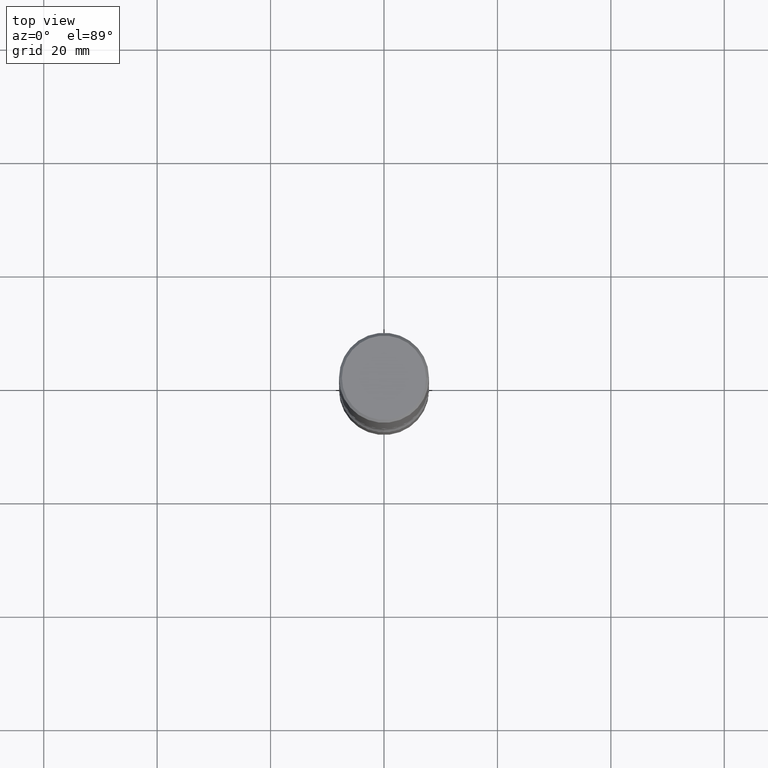
[diagram: clean part render]
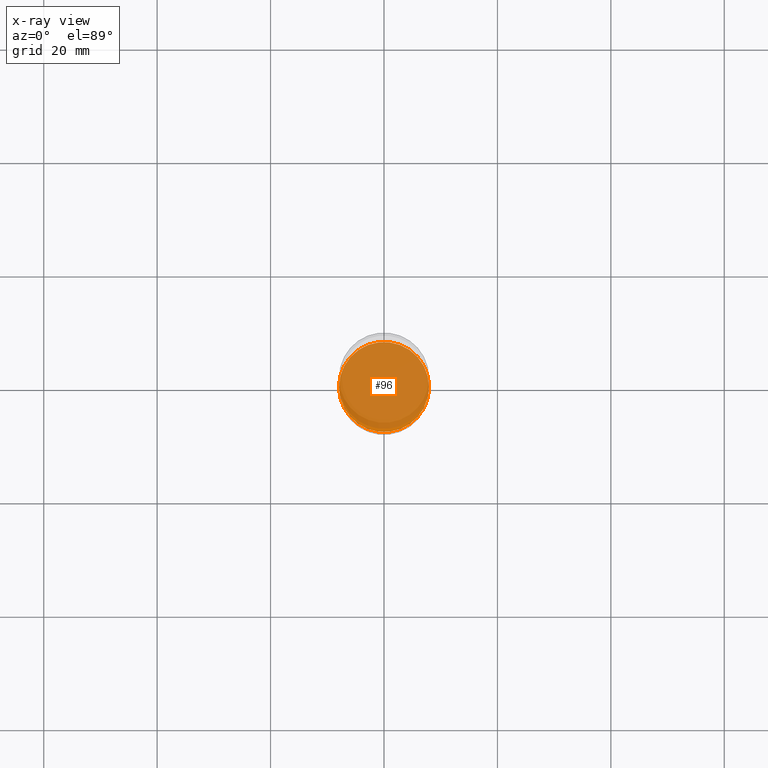
[diagram: x-ray — body ghosted, one internal face saturated and labeled with its STEP entity id]
A machine part, top view, then the same camera in x-ray: the body is ghosted and one INTERNAL B-rep face — a face not visible from any outside direction — is saturated and labeled: STEP entity #96.
In plain terms, the highlighted planar face has unit normal (0, -0, -1).
Its self-contained STEP definition (entity closure, byte-faithful):
#11 = AXIS2_PLACEMENT_3D ( 'NONE', #115, #515, #458 ) ;
#34 = AXIS2_PLACEMENT_3D ( 'NONE', #400, #153, #271 ) ;
#41 = DIRECTION ( 'NONE',  ( -2.445468806185136597E-29, 3.491481338843145583E-15, 1.000000000000000000 ) ) ;
#96 = ADVANCED_FACE ( 'NONE', ( #332 ), #460, .F. ) ;
#115 = CARTESIAN_POINT ( 'NONE',  ( 9.170508023194261117E-29, -1.309305502066179584E-14, -3.749999999999999556 ) ) ;
#153 = DIRECTION ( 'NONE',  ( -2.445468806185136597E-29, 3.491481338843145583E-15, 1.000000000000000000 ) ) ;
#185 = ORIENTED_EDGE ( 'NONE', *, *, #188, .T. ) ;
#187 = EDGE_LOOP ( 'NONE', ( #185, #230 ) ) ;
#188 = EDGE_CURVE ( 'NONE', #399, #218, #452, .T. ) ;
#218 = VERTEX_POINT ( 'NONE', #417 ) ;
#221 = CARTESIAN_POINT ( 'NONE',  ( 0.3125000000000001665, -1.527523085743875418E-14, -3.749999999999999556 ) ) ;
#230 = ORIENTED_EDGE ( 'NONE', *, *, #498, .T. ) ;
#249 = CARTESIAN_POINT ( 'NONE',  ( 9.170508023194261117E-29, -1.309305502066179584E-14, -3.749999999999999556 ) ) ;
#271 = DIRECTION ( 'NONE',  ( 1.000000000000000000, -6.982962677686265133E-15, 0.000000000000000000 ) ) ;
#332 = FACE_OUTER_BOUND ( 'NONE', #187, .T. ) ;
#399 = VERTEX_POINT ( 'NONE', #221 ) ;
#400 = CARTESIAN_POINT ( 'NONE',  ( 9.170508023194261117E-29, -1.309305502066179584E-14, -3.749999999999999556 ) ) ;
#412 = CIRCLE ( 'NONE', #34, 0.3125000000000001665 ) ;
#417 = CARTESIAN_POINT ( 'NONE',  ( -0.3125000000000001665, -1.284529592785785752E-14, -3.749999999999999556 ) ) ;
#420 = DIRECTION ( 'NONE',  ( 1.000000000000000000, -6.982962677686265133E-15, 0.000000000000000000 ) ) ;
#452 = CIRCLE ( 'NONE', #537, 0.3125000000000001665 ) ;
#458 = DIRECTION ( 'NONE',  ( -1.000000000000000000, 6.982962677686265922E-15, -4.876176775795935793E-29 ) ) ;
#460 = PLANE ( 'NONE',  #11 ) ;
#498 = EDGE_CURVE ( 'NONE', #218, #399, #412, .T. ) ;
#515 = DIRECTION ( 'NONE',  ( 2.438088387897960049E-29, -3.491481338843145188E-15, -1.000000000000000000 ) ) ;
#537 = AXIS2_PLACEMENT_3D ( 'NONE', #249, #41, #420 ) ;